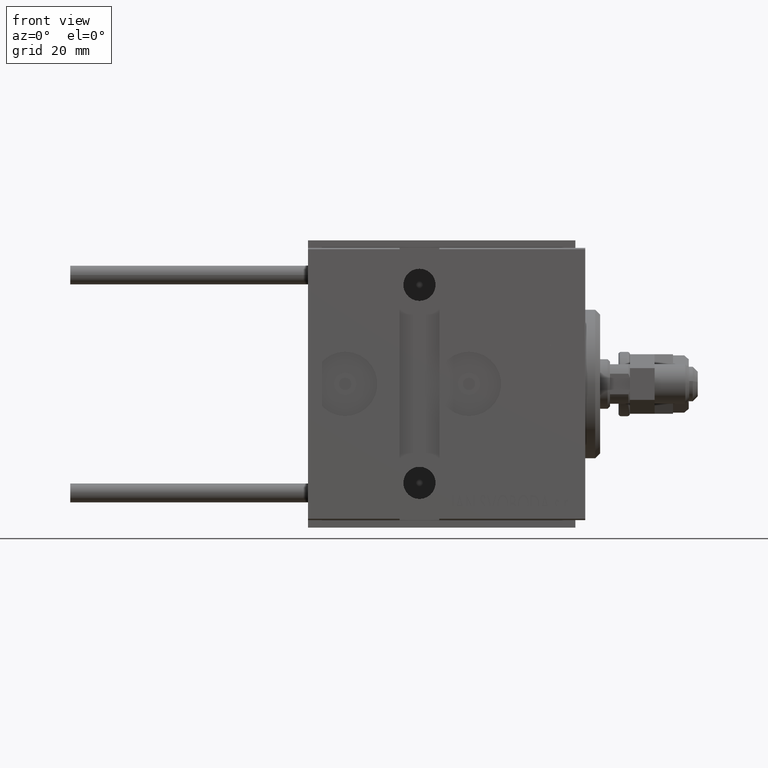
[diagram: clean part render]
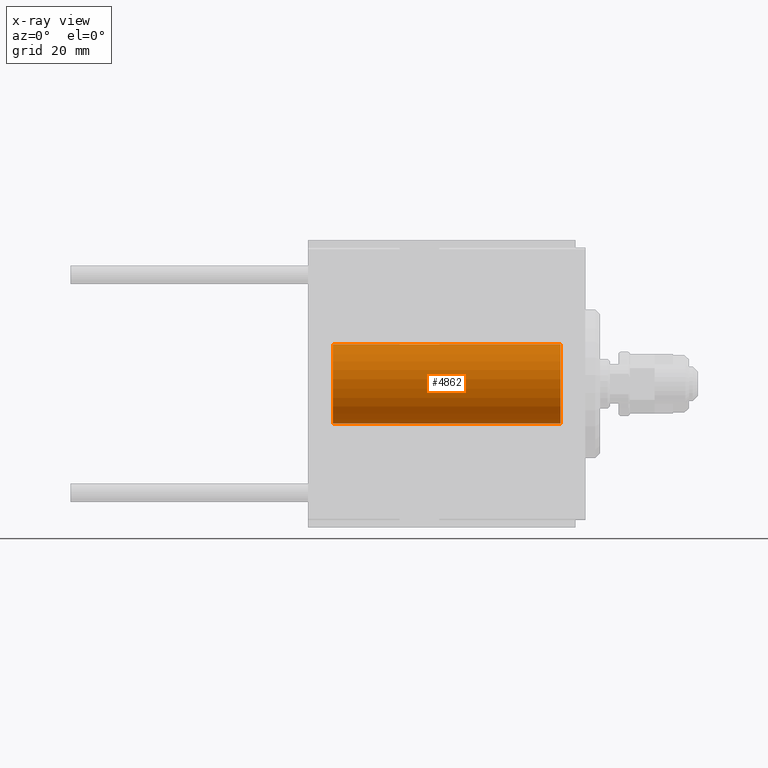
[diagram: x-ray — body ghosted, one internal face saturated and labeled with its STEP entity id]
A machine part, front view, then the same camera in x-ray: the body is ghosted and one INTERNAL B-rep face — a face not visible from any outside direction — is saturated and labeled: STEP entity #4862.
In plain terms, the highlighted cylindrical surface (partial cylindrical patch) has radius 8 mm, axis along (1, 0, -0).
Its self-contained STEP definition (entity closure, byte-faithful):
#114 = EDGE_CURVE ( 'NONE', #11384, #4323, #6202, .T. ) ;
#913 = CARTESIAN_POINT ( 'NONE',  ( 51.00000000000000000, 9.797174393178823685E-16, -7.999999999999998224 ) ) ;
#2963 = CIRCLE ( 'NONE', #12714, 7.999999999999998224 ) ;
#3529 = FACE_OUTER_BOUND ( 'NONE', #43021, .T. ) ;
#4323 = VERTEX_POINT ( 'NONE', #35760 ) ;
#4862 = ADVANCED_FACE ( 'NONE', ( #3529 ), #42523, .F. ) ;
#4990 = LINE ( 'NONE', #913, #43285 ) ;
#6202 = LINE ( 'NONE', #21993, #50315 ) ;
#6240 = CARTESIAN_POINT ( 'NONE',  ( 51.00000000000000000, 9.797174393178823685E-16, -7.999999999999998224 ) ) ;
#7107 = CARTESIAN_POINT ( 'NONE',  ( 4.999999999999997335, 9.797174393178823685E-16, -7.999999999999998224 ) ) ;
#7588 = CARTESIAN_POINT ( 'NONE',  ( 51.00000000000000000, 0.000000000000000000, 0.000000000000000000 ) ) ;
#11193 = ORIENTED_EDGE ( 'NONE', *, *, #114, .T. ) ;
#11384 = VERTEX_POINT ( 'NONE', #47795 ) ;
#12714 = AXIS2_PLACEMENT_3D ( 'NONE', #29693, #22786, #22540 ) ;
#14431 = EDGE_CURVE ( 'NONE', #4323, #33980, #2963, .T. ) ;
#16778 = AXIS2_PLACEMENT_3D ( 'NONE', #7588, #31044, #23128 ) ;
#17418 = DIRECTION ( 'NONE',  ( -1.000000000000000000, -0.000000000000000000, -0.000000000000000000 ) ) ;
#19306 = AXIS2_PLACEMENT_3D ( 'NONE', #43918, #25036, #40602 ) ;
#21993 = CARTESIAN_POINT ( 'NONE',  ( 51.00000000000000000, 0.000000000000000000, 7.999999999999998224 ) ) ;
#22540 = DIRECTION ( 'NONE',  ( 0.000000000000000000, 0.000000000000000000, 1.000000000000000000 ) ) ;
#22786 = DIRECTION ( 'NONE',  ( -1.000000000000000000, 0.000000000000000000, 0.000000000000000000 ) ) ;
#23128 = DIRECTION ( 'NONE',  ( 0.000000000000000000, 0.000000000000000000, 1.000000000000000000 ) ) ;
#23389 = CIRCLE ( 'NONE', #19306, 7.999999999999998224 ) ;
#23588 = DIRECTION ( 'NONE',  ( -1.000000000000000000, -0.000000000000000000, -0.000000000000000000 ) ) ;
#25036 = DIRECTION ( 'NONE',  ( -1.000000000000000000, 0.000000000000000000, 0.000000000000000000 ) ) ;
#28794 = VERTEX_POINT ( 'NONE', #6240 ) ;
#29693 = CARTESIAN_POINT ( 'NONE',  ( 4.999999999999997335, 0.000000000000000000, 0.000000000000000000 ) ) ;
#31044 = DIRECTION ( 'NONE',  ( -1.000000000000000000, -0.000000000000000000, -0.000000000000000000 ) ) ;
#32866 = EDGE_CURVE ( 'NONE', #28794, #33980, #4990, .T. ) ;
#33980 = VERTEX_POINT ( 'NONE', #7107 ) ;
#35760 = CARTESIAN_POINT ( 'NONE',  ( 4.999999999999997335, 0.000000000000000000, 7.999999999999998224 ) ) ;
#38893 = EDGE_CURVE ( 'NONE', #11384, #28794, #23389, .T. ) ;
#40249 = ORIENTED_EDGE ( 'NONE', *, *, #38893, .F. ) ;
#40602 = DIRECTION ( 'NONE',  ( 0.000000000000000000, 0.000000000000000000, 1.000000000000000000 ) ) ;
#41838 = ORIENTED_EDGE ( 'NONE', *, *, #14431, .T. ) ;
#42523 = CYLINDRICAL_SURFACE ( 'NONE', #16778, 7.999999999999998224 ) ;
#43021 = EDGE_LOOP ( 'NONE', ( #45122, #40249, #11193, #41838 ) ) ;
#43285 = VECTOR ( 'NONE', #23588, 1000.000000000000000 ) ;
#43918 = CARTESIAN_POINT ( 'NONE',  ( 51.00000000000000000, 0.000000000000000000, 0.000000000000000000 ) ) ;
#45122 = ORIENTED_EDGE ( 'NONE', *, *, #32866, .F. ) ;
#47795 = CARTESIAN_POINT ( 'NONE',  ( 51.00000000000000000, 0.000000000000000000, 7.999999999999998224 ) ) ;
#50315 = VECTOR ( 'NONE', #17418, 1000.000000000000000 ) ;